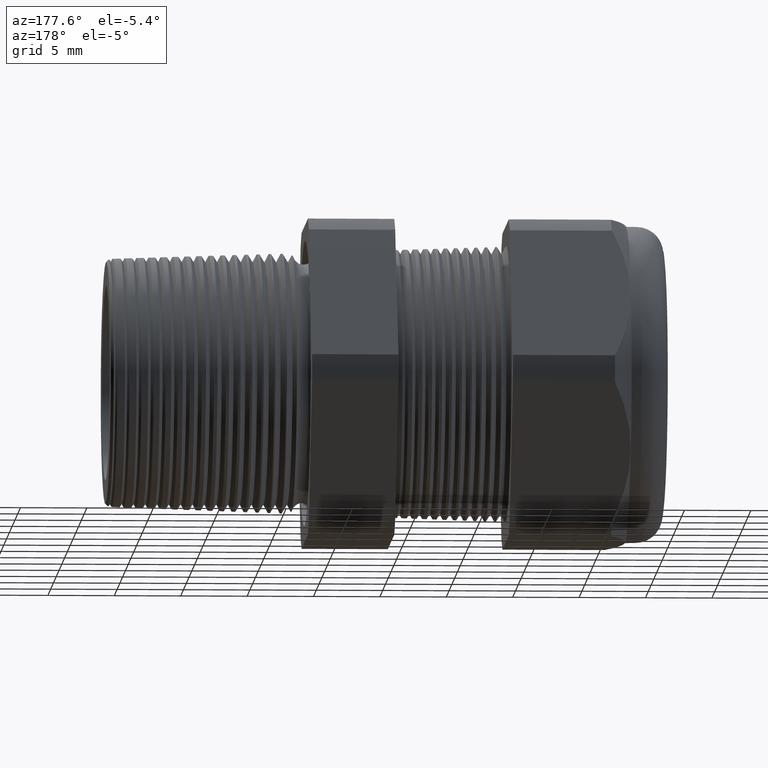
[diagram: clean part render]
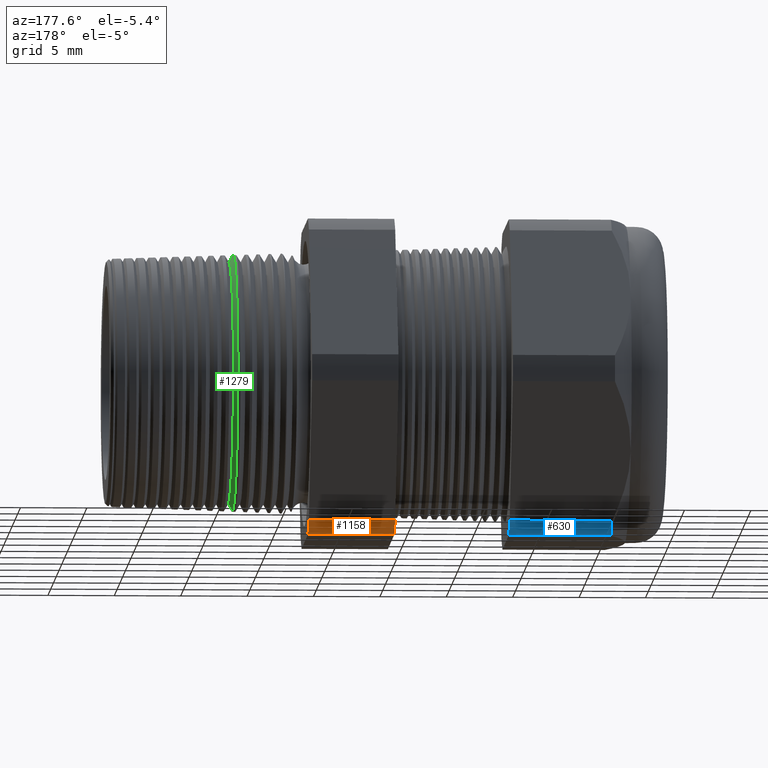
[diagram: same view with three faces highlighted in distinct colors, each labeled with its STEP entity id]
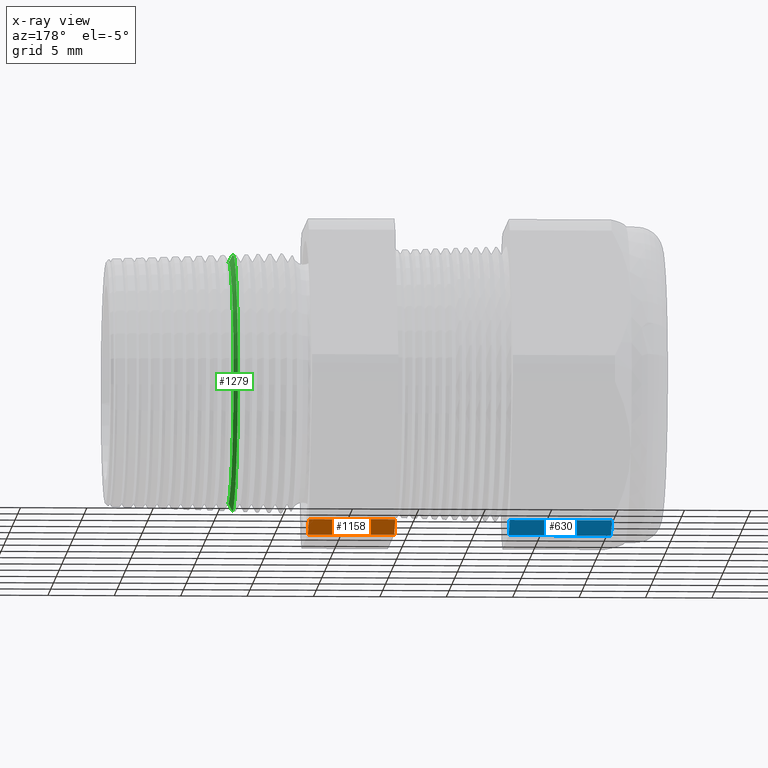
[diagram: x-ray of the same camera — body ghosted, the three highlighted faces saturated]
A machine part, auxiliary view with three faces highlighted in distinct colors.
The next image is the same camera in x-ray (body ghosted, the three faces saturated) — at least one of them is partly hidden behind the body in this view.
Their STEP definitions:

[orange] entity #1158 — the highlighted cylindrical surface (partial cylindrical patch) has radius 13.2512 mm, axis along (-1, 0, 0).
#824 = VERTEX_POINT ( 'NONE', #3684 ) ;
#859 = VERTEX_POINT ( 'NONE', #3771 ) ;
#861 = EDGE_CURVE ( 'NONE', #859, #824, #3769, .T. ) ;
#1037 = VERTEX_POINT ( 'NONE', #4084 ) ;
#1039 = EDGE_CURVE ( 'NONE', #1037, #1040, #4143, .T. ) ;
#1040 = VERTEX_POINT ( 'NONE', #4139 ) ;
#1156 = EDGE_CURVE ( 'NONE', #859, #1040, #4276, .T. ) ;
#1158 = ADVANCED_FACE ( 'NONE', ( #4272 ), #4339, .T. ) ;
#1159 = EDGE_LOOP ( 'NONE', ( #1160, #1207, #1208, #1210 ) ) ;
#1160 = ORIENTED_EDGE ( 'NONE', *, *, #1156, .T. ) ;
#1207 = ORIENTED_EDGE ( 'NONE', *, *, #1039, .F. ) ;
#1208 = ORIENTED_EDGE ( 'NONE', *, *, #1209, .F. ) ;
#1209 = EDGE_CURVE ( 'NONE', #824, #1037, #4342, .T. ) ;
#1210 = ORIENTED_EDGE ( 'NONE', *, *, #861, .F. ) ;
#3684 = CARTESIAN_POINT ( 'NONE',  ( -0.3100000000000000000, 0.2938165587564947100, -0.4310947921287049400 ) ) ;
#3765 = DIRECTION ( 'NONE',  ( 0.0000000000000000000, 0.0000000000000000000, -1.000000000000000000 ) ) ;
#3766 = DIRECTION ( 'NONE',  ( 1.000000000000000000, 0.0000000000000000000, 0.0000000000000000000 ) ) ;
#3767 = CARTESIAN_POINT ( 'NONE',  ( -0.3100000000000000000, 0.0000000000000000000, 0.0000000000000000000 ) ) ;
#3768 = AXIS2_PLACEMENT_3D ( 'NONE', #3767, #3766, #3765 ) ;
#3769 = CIRCLE ( 'NONE', #3768, 0.5217000000000000500 ) ;
#3771 = CARTESIAN_POINT ( 'NONE',  ( -0.3100000000000000000, 0.2264307620443831200, -0.4700000000000000300 ) ) ;
#4083 = CARTESIAN_POINT ( 'NONE',  ( -0.5659055118110235500, 0.0000000000000000000, 0.0000000000000000000 ) ) ;
#4084 = CARTESIAN_POINT ( 'NONE',  ( -0.5659055118110235500, 0.2938165587564946500, -0.4310947921287050500 ) ) ;
#4139 = CARTESIAN_POINT ( 'NONE',  ( -0.5659055118110235500, 0.2264307620443831200, -0.4700000000000000300 ) ) ;
#4140 = DIRECTION ( 'NONE',  ( 0.0000000000000000000, 0.0000000000000000000, 1.000000000000000000 ) ) ;
#4141 = DIRECTION ( 'NONE',  ( -1.000000000000000000, 0.0000000000000000000, 0.0000000000000000000 ) ) ;
#4142 = AXIS2_PLACEMENT_3D ( 'NONE', #4083, #4141, #4140 ) ;
#4143 = CIRCLE ( 'NONE', #4142, 0.5217000000000000500 ) ;
#4272 = FACE_OUTER_BOUND ( 'NONE', #1159, .T. ) ;
#4273 = DIRECTION ( 'NONE',  ( -1.000000000000000000, 0.0000000000000000000, 0.0000000000000000000 ) ) ;
#4274 = VECTOR ( 'NONE', #4273, 39.37007874015748100 ) ;
#4275 = CARTESIAN_POINT ( 'NONE',  ( 0.2800000000000000300, 0.2264307620443831200, -0.4700000000000000300 ) ) ;
#4276 = LINE ( 'NONE', #4275, #4274 ) ;
#4277 = CARTESIAN_POINT ( 'NONE',  ( 0.2800000000000000300, 0.0000000000000000000, 0.0000000000000000000 ) ) ;
#4335 = DIRECTION ( 'NONE',  ( 0.0000000000000000000, 0.0000000000000000000, 1.000000000000000000 ) ) ;
#4336 = DIRECTION ( 'NONE',  ( -1.000000000000000000, 0.0000000000000000000, 0.0000000000000000000 ) ) ;
#4337 = AXIS2_PLACEMENT_3D ( 'NONE', #4277, #4336, #4335 ) ;
#4339 = CYLINDRICAL_SURFACE ( 'NONE', #4337, 0.5217000000000000500 ) ;
#4340 = VECTOR ( 'NONE', #4406, 39.37007874015748100 ) ;
#4341 = CARTESIAN_POINT ( 'NONE',  ( 0.2800000000000000300, 0.2938165587564947100, -0.4310947921287049400 ) ) ;
#4342 = LINE ( 'NONE', #4341, #4340 ) ;
#4406 = DIRECTION ( 'NONE',  ( -1.000000000000000000, 0.0000000000000000000, 0.0000000000000000000 ) ) ;

[blue] entity #630 — the highlighted cylindrical surface (partial cylindrical patch) has radius 13.2512 mm, axis along (-1, 0, 0).
#570 = EDGE_CURVE ( 'NONE', #572, #573, #3175, .T. ) ;
#572 = VERTEX_POINT ( 'NONE', #3171 ) ;
#573 = VERTEX_POINT ( 'NONE', #3170 ) ;
#603 = EDGE_CURVE ( 'NONE', #687, #573, #3234, .T. ) ;
#605 = ORIENTED_EDGE ( 'NONE', *, *, #570, .F. ) ;
#606 = ORIENTED_EDGE ( 'NONE', *, *, #608, .F. ) ;
#608 = EDGE_CURVE ( 'NONE', #686, #572, #3228, .T. ) ;
#630 = ADVANCED_FACE ( 'NONE', ( #3296 ), #3294, .T. ) ;
#631 = EDGE_LOOP ( 'NONE', ( #632, #688, #605, #606 ) ) ;
#632 = ORIENTED_EDGE ( 'NONE', *, *, #685, .T. ) ;
#685 = EDGE_CURVE ( 'NONE', #686, #687, #3403, .T. ) ;
#686 = VERTEX_POINT ( 'NONE', #3399 ) ;
#687 = VERTEX_POINT ( 'NONE', #3398 ) ;
#688 = ORIENTED_EDGE ( 'NONE', *, *, #603, .T. ) ;
#3170 = CARTESIAN_POINT ( 'NONE',  ( -1.208063779527558800, 0.2938165587564947100, -0.4310947921287049400 ) ) ;
#3171 = CARTESIAN_POINT ( 'NONE',  ( -0.9054330708661416600, 0.2938165587564947100, -0.4310947921287049400 ) ) ;
#3172 = DIRECTION ( 'NONE',  ( -1.000000000000000000, 0.0000000000000000000, 0.0000000000000000000 ) ) ;
#3173 = VECTOR ( 'NONE', #3172, 39.37007874015748100 ) ;
#3174 = CARTESIAN_POINT ( 'NONE',  ( 0.2800000000000000300, 0.2938165587564947100, -0.4310947921287049400 ) ) ;
#3175 = LINE ( 'NONE', #3174, #3173 ) ;
#3224 = DIRECTION ( 'NONE',  ( 0.0000000000000000000, 0.0000000000000000000, -1.000000000000000000 ) ) ;
#3225 = DIRECTION ( 'NONE',  ( 1.000000000000000000, 0.0000000000000000000, 0.0000000000000000000 ) ) ;
#3226 = CARTESIAN_POINT ( 'NONE',  ( -0.9054330708661416600, 0.0000000000000000000, 0.0000000000000000000 ) ) ;
#3227 = AXIS2_PLACEMENT_3D ( 'NONE', #3226, #3225, #3224 ) ;
#3228 = CIRCLE ( 'NONE', #3227, 0.5217000000000000500 ) ;
#3230 = DIRECTION ( 'NONE',  ( 0.0000000000000000000, 0.0000000000000000000, -1.000000000000000000 ) ) ;
#3231 = DIRECTION ( 'NONE',  ( 1.000000000000000000, 0.0000000000000000000, 0.0000000000000000000 ) ) ;
#3232 = CARTESIAN_POINT ( 'NONE',  ( -1.208063779527558800, 0.0000000000000000000, 0.0000000000000000000 ) ) ;
#3233 = AXIS2_PLACEMENT_3D ( 'NONE', #3232, #3231, #3230 ) ;
#3234 = CIRCLE ( 'NONE', #3233, 0.5217000000000000500 ) ;
#3290 = DIRECTION ( 'NONE',  ( 0.0000000000000000000, 0.0000000000000000000, 1.000000000000000000 ) ) ;
#3291 = DIRECTION ( 'NONE',  ( -1.000000000000000000, 0.0000000000000000000, 0.0000000000000000000 ) ) ;
#3292 = CARTESIAN_POINT ( 'NONE',  ( 0.2800000000000000300, 0.0000000000000000000, 0.0000000000000000000 ) ) ;
#3293 = AXIS2_PLACEMENT_3D ( 'NONE', #3292, #3291, #3290 ) ;
#3294 = CYLINDRICAL_SURFACE ( 'NONE', #3293, 0.5217000000000000500 ) ;
#3296 = FACE_OUTER_BOUND ( 'NONE', #631, .T. ) ;
#3398 = CARTESIAN_POINT ( 'NONE',  ( -1.208063779527558800, 0.2264307620443831200, -0.4700000000000000300 ) ) ;
#3399 = CARTESIAN_POINT ( 'NONE',  ( -0.9054330708661416600, 0.2264307620443831200, -0.4700000000000000300 ) ) ;
#3400 = DIRECTION ( 'NONE',  ( -1.000000000000000000, 0.0000000000000000000, 0.0000000000000000000 ) ) ;
#3401 = VECTOR ( 'NONE', #3400, 39.37007874015748100 ) ;
#3402 = CARTESIAN_POINT ( 'NONE',  ( 0.2800000000000000300, 0.2264307620443831200, -0.4700000000000000300 ) ) ;
#3403 = LINE ( 'NONE', #3402, #3401 ) ;

[green] entity #1279 — the highlighted conical surface has half-angle 62 deg.
#1142 = EDGE_CURVE ( 'NONE', #1198, #1215, #4303, .T. ) ;
#1184 = ORIENTED_EDGE ( 'NONE', *, *, #1196, .F. ) ;
#1186 = ORIENTED_EDGE ( 'NONE', *, *, #1187, .T. ) ;
#1187 = EDGE_CURVE ( 'NONE', #1197, #1189, #4371, .T. ) ;
#1189 = VERTEX_POINT ( 'NONE', #4363 ) ;
#1190 = ORIENTED_EDGE ( 'NONE', *, *, #1213, .T. ) ;
#1196 = EDGE_CURVE ( 'NONE', #1197, #1198, #4360, .T. ) ;
#1197 = VERTEX_POINT ( 'NONE', #4351 ) ;
#1198 = VERTEX_POINT ( 'NONE', #4350 ) ;
#1213 = EDGE_CURVE ( 'NONE', #1189, #1215, #4399, .T. ) ;
#1215 = VERTEX_POINT ( 'NONE', #4394 ) ;
#1217 = ORIENTED_EDGE ( 'NONE', *, *, #1142, .F. ) ;
#1279 = ADVANCED_FACE ( 'NONE', ( #4450 ), #4448, .T. ) ;
#1281 = EDGE_LOOP ( 'NONE', ( #1184, #1186, #1190, #1217 ) ) ;
#4300 = DIRECTION ( 'NONE',  ( -0.4694715627859038000, 0.0000000000000000000, 0.8829475928589199900 ) ) ;
#4301 = VECTOR ( 'NONE', #4300, 39.37007874015748100 ) ;
#4302 = CARTESIAN_POINT ( 'NONE',  ( -0.09999999999999996400, 0.0000000000000000000, 0.3892070189845243700 ) ) ;
#4303 = LINE ( 'NONE', #4302, #4301 ) ;
#4350 = CARTESIAN_POINT ( 'NONE',  ( -0.08373702801092096400, 0.0000000000000000000, 0.3586208171594785200 ) ) ;
#4351 = CARTESIAN_POINT ( 'NONE',  ( -0.08373702801092096400, 4.533371404240669400E-017, -0.3586208171594785200 ) ) ;
#4352 = DIRECTION ( 'NONE',  ( 0.0000000000000000000, 0.0000000000000000000, -1.000000000000000000 ) ) ;
#4353 = DIRECTION ( 'NONE',  ( 1.000000000000000000, 0.0000000000000000000, 0.0000000000000000000 ) ) ;
#4354 = CARTESIAN_POINT ( 'NONE',  ( -0.08373702801092096400, 0.0000000000000000000, 0.0000000000000000000 ) ) ;
#4355 = AXIS2_PLACEMENT_3D ( 'NONE', #4354, #4353, #4352 ) ;
#4360 = CIRCLE ( 'NONE', #4355, 0.3586208171594785200 ) ;
#4363 = CARTESIAN_POINT ( 'NONE',  ( -0.09602701323886067600, 4.676634358804842700E-017, -0.3817349176363793500 ) ) ;
#4364 = DIRECTION ( 'NONE',  ( -0.4694715627859038000, 1.081298943409536900E-016, -0.8829475928589199900 ) ) ;
#4365 = VECTOR ( 'NONE', #4364, 39.37007874015748100 ) ;
#4366 = CARTESIAN_POINT ( 'NONE',  ( -0.09999999999999996400, 4.766411300050808500E-017, -0.3892070189845243700 ) ) ;
#4371 = LINE ( 'NONE', #4366, #4365 ) ;
#4394 = CARTESIAN_POINT ( 'NONE',  ( -0.09602701323886067600, 0.0000000000000000000, 0.3817349176363793500 ) ) ;
#4395 = DIRECTION ( 'NONE',  ( 0.0000000000000000000, 0.0000000000000000000, 1.000000000000000000 ) ) ;
#4396 = DIRECTION ( 'NONE',  ( 1.000000000000000000, 0.0000000000000000000, 0.0000000000000000000 ) ) ;
#4397 = CARTESIAN_POINT ( 'NONE',  ( -0.09602701323886067600, 0.0000000000000000000, 0.0000000000000000000 ) ) ;
#4398 = AXIS2_PLACEMENT_3D ( 'NONE', #4397, #4396, #4395 ) ;
#4399 = CIRCLE ( 'NONE', #4398, 0.3817349176363793500 ) ;
#4444 = DIRECTION ( 'NONE',  ( 0.0000000000000000000, 0.0000000000000000000, 1.000000000000000000 ) ) ;
#4445 = DIRECTION ( 'NONE',  ( -1.000000000000000000, 0.0000000000000000000, 0.0000000000000000000 ) ) ;
#4446 = CARTESIAN_POINT ( 'NONE',  ( -0.09999999999999996400, 0.0000000000000000000, 0.0000000000000000000 ) ) ;
#4447 = AXIS2_PLACEMENT_3D ( 'NONE', #4446, #4445, #4444 ) ;
#4448 = CONICAL_SURFACE ( 'NONE', #4447, 0.3892070189845243700, 1.082104136236469600 ) ;
#4450 = FACE_OUTER_BOUND ( 'NONE', #1281, .T. ) ;